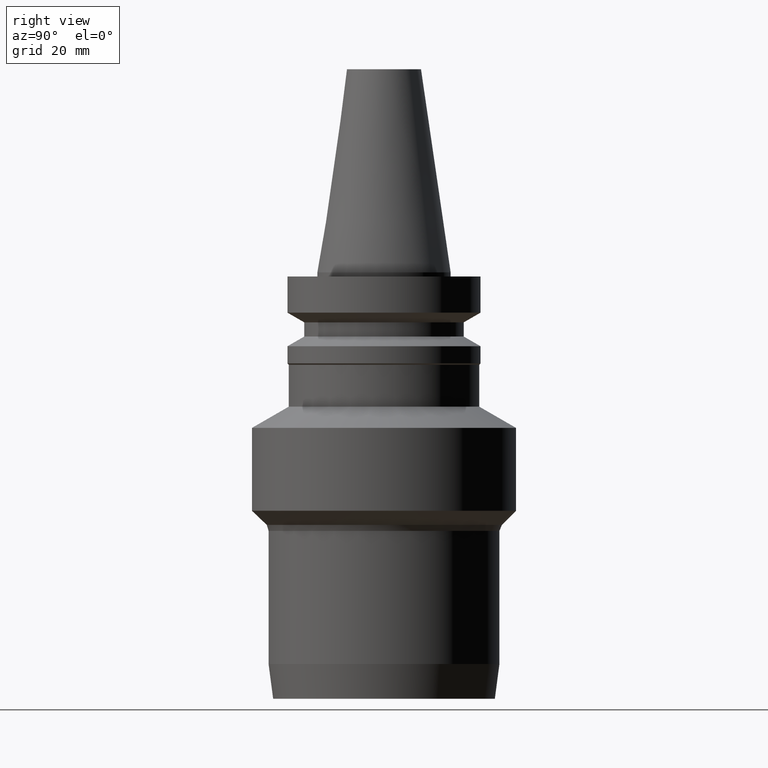
[diagram: clean part render]
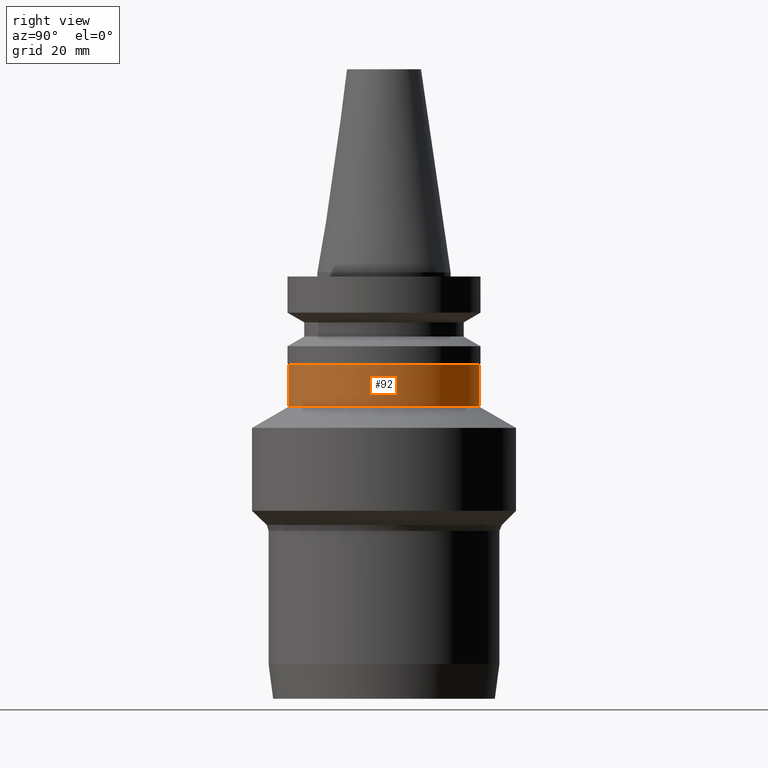
[diagram: same view with one face highlighted and labeled with its STEP entity id]
A machine part, right view. The second image highlights one B-rep face of the part: STEP entity #92.
In plain terms, the highlighted cylindrical surface (bore or boss wall) has radius 22.7 mm, axis along (0, 0, -1).
Its self-contained STEP definition (entity closure, byte-faithful):
#92=ADVANCED_FACE('Unnamed[1]',(#219,#220),#221,.T.);
#101=EDGE_CURVE('Unnamed[1]',#232,#232,#233,.T.);
#103=EDGE_CURVE('Unnamed[1]',#235,#235,#236,.T.);
#219=FACE_BOUND('',#379,.T.);
#220=FACE_BOUND('',#380,.T.);
#221=CYLINDRICAL_SURFACE('',#381,22.7000000000001);
#232=VERTEX_POINT('',#395);
#233=CIRCLE('',#396,22.7);
#235=VERTEX_POINT('',#399);
#236=CIRCLE('',#400,22.7000000000003);
#379=EDGE_LOOP('',(#553));
#380=EDGE_LOOP('',(#554));
#381=AXIS2_PLACEMENT_3D('',#555,#556,#557);
#395=CARTESIAN_POINT('',(1.3471114790621E-015,22.7,-22.0000000000002));
#396=AXIS2_PLACEMENT_3D('',#565,#566,#567);
#399=CARTESIAN_POINT('',(1.95943487863577E-015,22.7000000000003,-32.0));
#400=AXIS2_PLACEMENT_3D('',#568,#569,#570);
#553=ORIENTED_EDGE('',*,*,#103,.F.);
#554=ORIENTED_EDGE('',*,*,#101,.T.);
#555=CARTESIAN_POINT('',(1.65327317884893E-015,3.30654635769787E-015,-27.0000000000001));
#556=DIRECTION('',(6.12323399573677E-017,1.22464679914766E-016,-1.0));
#557=DIRECTION('',(-1.23259516440767E-032,1.0,1.22464679914766E-016));
#565=CARTESIAN_POINT('',(1.3471114790621E-015,2.6942229581242E-015,-22.0000000000002));
#566=DIRECTION('',(6.12323399573677E-017,1.22464679914767E-016,-1.0));
#567=DIRECTION('',(-1.23259516440768E-032,1.0,1.22464679914767E-016));
#568=CARTESIAN_POINT('',(1.95943487863577E-015,3.91886975727154E-015,-32.0));
#569=DIRECTION('',(6.12323399573677E-017,1.22464679914765E-016,-1.0));
#570=DIRECTION('',(-1.23259516440766E-032,1.0,1.22464679914765E-016));